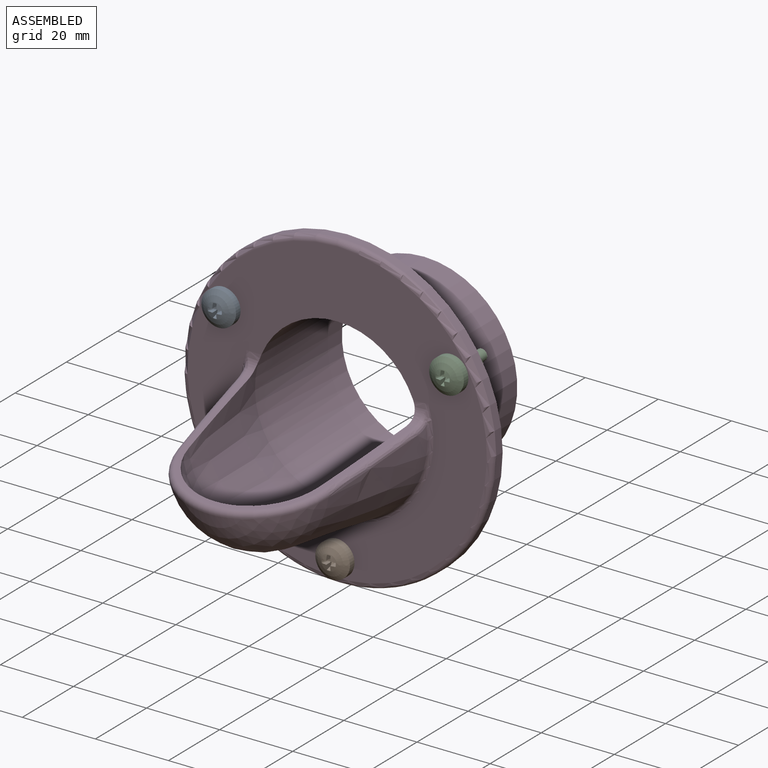
[diagram: assembled view]
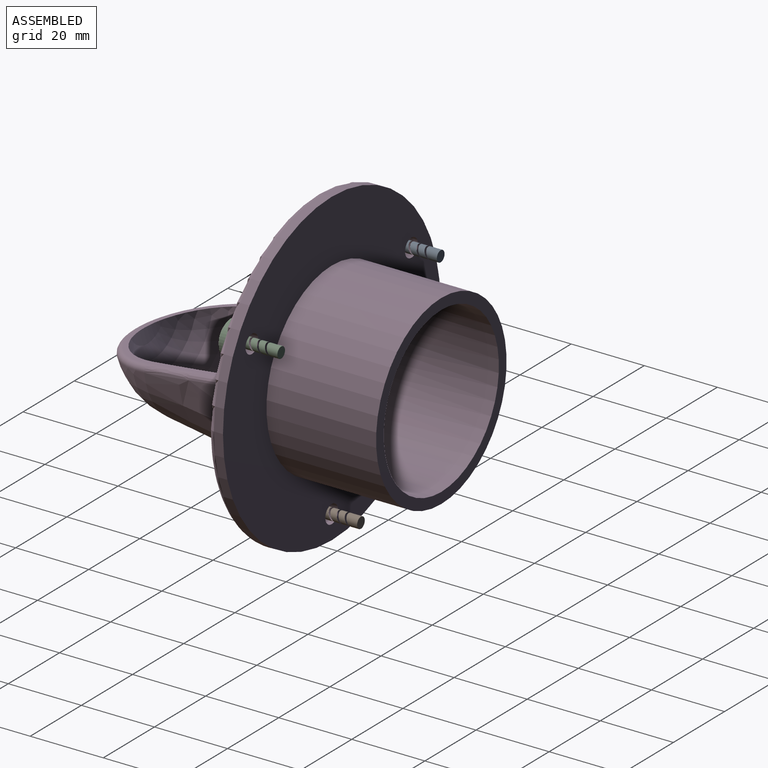
[diagram: assembled view, second angle]
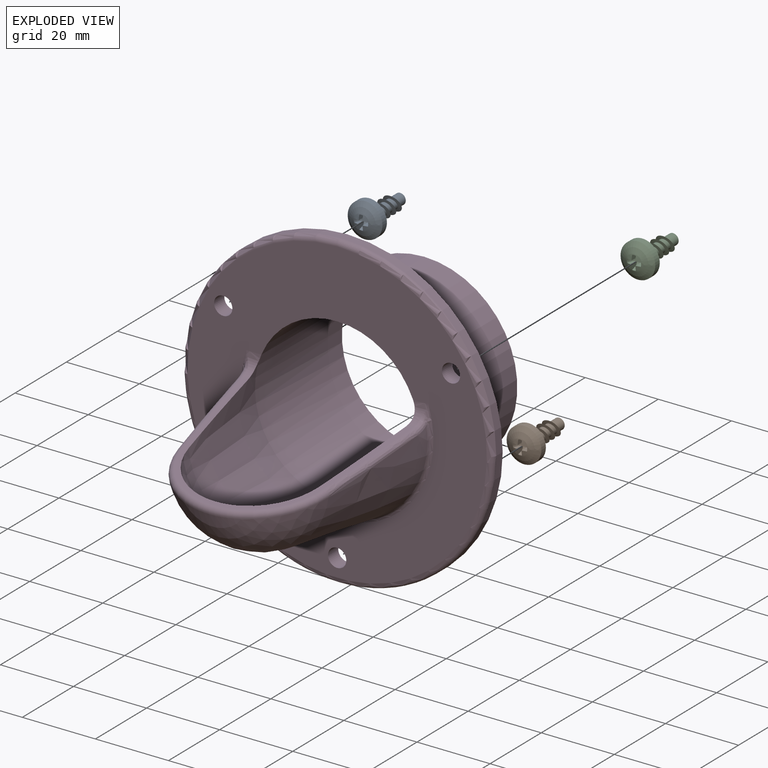
[diagram: exploded view]
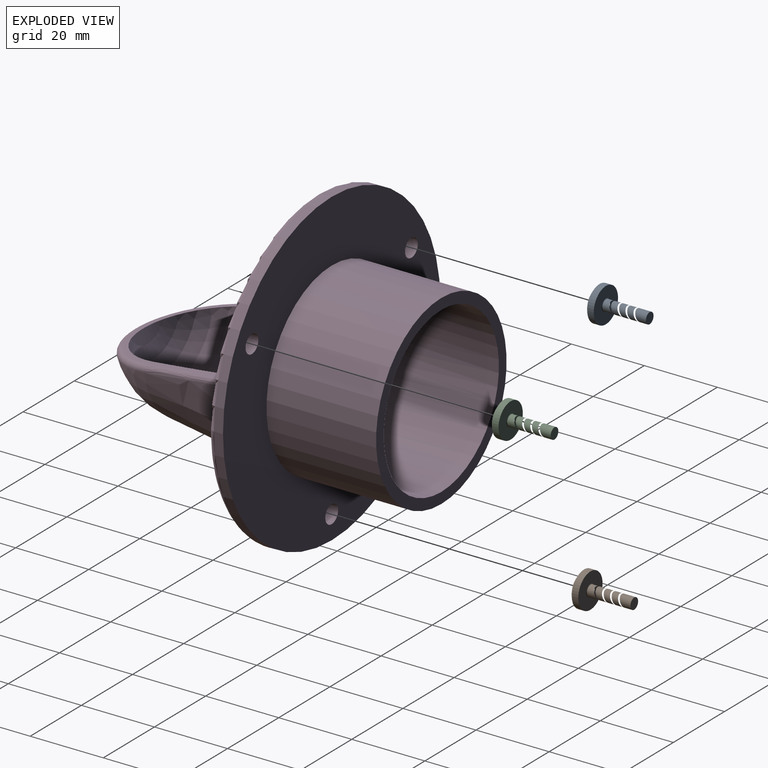
[diagram: exploded view, second angle]
ASSEMBLY  parts=4 mates=3
PART A: 35 faces, bbox 9.8x15.8x9.8 mm
  f0: sphere r=7.24mm, area 72.7mm2, adj f4,f18,f19,f20,f21,f22,f23,f24
  f1: cylinder r=1.5mm len=3mm, axis (0,-1,0), area 19.4mm2, adj f2,f6
  f2: torus R=1.65mm, axis (0,-1,0), area 2.3mm2, adj f1,f3
  f3: plane 9.5x9.5mm, normal (0,1,0), area 62.3mm2, adj f2,f4
  f4: cylinder r=4.75mm len=9.5mm, axis (0,-1,0), area 53mm2, adj f0,f3
  f5: cone r=2.5mm half-angle=73.5deg, axis (0,-0.92,-0.4), area 12.1mm2, adj f6,f7
  f6: cone r=1.5mm half-angle=83deg, axis (0,0.92,0.4), area 12.6mm2, adj f1,f5
  f7: cylinder r=1.5mm len=3.07mm, axis (0,-1,0), area 17.5mm2, adj f5,f9
  f8: cone r=2.5mm half-angle=73.5deg, axis (0,-0.92,-0.4), area 12.1mm2, adj f9,f10
  f9: cone r=1.5mm half-angle=83deg, axis (0,0.92,0.4), area 12.6mm2, adj f7,f8
  f10: cylinder r=1.5mm len=3.07mm, axis (0,-1,0), area 17.5mm2, adj f8,f12
  f11: cone r=2.5mm half-angle=73.5deg, axis (0,-0.92,-0.4), area 12.1mm2, adj f12,f13
  f12: cone r=1.5mm half-angle=83deg, axis (0,0.92,0.4), area 12.6mm2, adj f10,f11
  f13: cylinder r=1.5mm len=3.07mm, axis (0,-1,0), area 17.5mm2, adj f11,f15
  f14: cone r=2.5mm half-angle=73.5deg, axis (0,-0.92,-0.4), area 12.5mm2, adj f15,f17
  f15: cone r=1.5mm half-angle=83deg, axis (0,0.92,0.4), area 12.6mm2, adj f13,f14
  f16: plane 3x3mm, normal (0,1,0), area 7.1mm2, adj f17
  f17: cylinder r=1.5mm len=3.39mm, axis (0,-1,0), area 26mm2, adj f14,f16
  f18: torus R=2.38mm, axis (0,1,0), area 0mm2, adj f0,f23,f28,f31
  f19: torus R=2.38mm, axis (0,1,0), area 0mm2, adj f0,f27,f29,f32
  f20: torus R=2.38mm, axis (0,1,0), area 0mm2, adj f0,f25,f26,f33
  f21: torus R=2.38mm, axis (0,1,0), area 0mm2, adj f0,f22,f24,f34
  f22: plane 2.47x1.67mm, normal (1,0,0), area 2.1mm2, adj f0,f21,f23,f30,f34
  f23: plane 2.47x1.67mm, normal (0,0,1), area 2.1mm2, adj f0,f18,f22,f30,f31
  f24: plane 2.47x1.67mm, normal (-1,0,0), area 2.1mm2, adj f0,f21,f25,f30,f34
  f25: plane 2.47x1.67mm, normal (0,0,1), area 2.1mm2, adj f0,f20,f24,f30,f33
  f26: plane 2.47x1.67mm, normal (0,0,-1), area 2.1mm2, adj f0,f20,f27,f30,f33
  f27: plane 2.47x1.67mm, normal (-1,0,0), area 2.1mm2, adj f0,f19,f26,f30,f32
  f28: plane 2.47x1.67mm, normal (0,0,-1), area 2.1mm2, adj f0,f18,f29,f30,f31
  f29: plane 2.47x1.67mm, normal (1,0,0), area 2.1mm2, adj f0,f19,f28,f30,f32
  f30: cone r=1.5mm half-angle=62deg, axis (0,-1,0), area 6.1mm2, adj f22,f23,f24,f25,f26,f27,f28,f29
  f31: cone r=1.5mm half-angle=15.8deg, axis (0,-1,0), area 1.7mm2, adj f18,f23,f28,f30
  f32: cone r=1.5mm half-angle=15.8deg, axis (0,-1,0), area 1.7mm2, adj f19,f27,f29,f30
  f33: cone r=1.5mm half-angle=15.8deg, axis (0,-1,0), area 1.7mm2, adj f20,f25,f26,f30
  f34: cone r=1.5mm half-angle=15.8deg, axis (0,-1,0), area 1.7mm2, adj f21,f22,f24,f30
PART B: same geometry as A
PART C: same geometry as A
PART D: 25 faces, bbox 133.4x127.2x133.4 mm
  f0: cone r=25.5mm half-angle=8deg, axis (0,1,0), area 2341.9mm2, adj f1,f13,f16,f17,f19,f20
  f1: sphere r=21.09mm, area 0mm2, adj f0,f18
  f2: sphere r=18.12mm, area 4125.2mm2, adj f3,f10
  f3: cone r=22.5mm half-angle=8deg, axis (0,1,0), area 2197.5mm2, adj f2,f8,f10,f11,f12
  f4: cylinder r=25.5mm len=51mm, axis (0,-1,0), area 4806.6mm2, adj f5,f9
  f5: plane 85x85mm, normal (0,1,0), area 3572.8mm2, adj f4,f6,f22,f23,f24
  f6: cylinder r=42.5mm len=85mm, axis (0,-1,0), area 667.6mm2, adj f5,f14
  f7: plane 82x82mm, normal (0,-1,0), area 3265.9mm2, adj f8,f11,f12,f13,f14,f22,f23,f24
  f8: cylinder r=22.5mm len=45mm, axis (0,-1,0), area 4806.6mm2, adj f3,f7,f9
  f9: plane 51x51mm, normal (0,1,0), area 452.4mm2, adj f4,f8
  f10: plane 88.01x86.16mm, normal (0,-0.17,0.98), area 162.3mm2, adj f2,f3,f11,f12,f17,f18,f19
  f11: bspline ~4.92x4.78mm, area 17.4mm2, adj f3,f7,f10,f15,f16
  f12: bspline ~4.92x4.78mm, area 17.4mm2, adj f3,f7,f10,f20,f21
  f13: torus R=26.37mm, axis (0,1,0), area 133.9mm2, adj f0,f7,f15,f21
  f14: torus R=41mm, axis (0,1,0), area 621.1mm2, adj f6,f7
  f15: bspline ~5.33x2.11mm, area 2.8mm2, adj f11,f13,f16
  f16: bspline ~4.81x3.13mm, area 6.6mm2, adj f0,f11,f15,f17
  f17: bspline ~28.84x6.76mm, area 69.2mm2, adj f0,f10,f16,f18
  f18: torus R=19.46mm, axis (0,-0.17,0.98), area 145.6mm2, adj f1,f10,f17,f19
  f19: bspline ~67.85x13.76mm, area 69.2mm2, adj f0,f10,f18,f20
  f20: bspline ~4.81x3.13mm, area 6.6mm2, adj f0,f12,f19,f21
  f21: bspline ~4.96x1.71mm, area 2.8mm2, adj f12,f13,f20
  f22: cylinder r=2.5mm len=5mm, axis (0,-1,0), area 62.8mm2, adj f5,f7
  f23: cylinder r=2.5mm len=5mm, axis (0,-1,0), area 62.8mm2, adj f5,f7
  f24: cylinder r=2.5mm len=5mm, axis (0,-1,0), area 62.8mm2, adj f5,f7
PLACE A t=(-31.18,-385.5,891)mm
PLACE B t=(0,-385.5,837)mm
PLACE C t=(31.18,-385.5,891)mm
PLACE D at identity fixed
MATE fastened B.f1 <-> D.f22  axis (0,1,0) through (0,-385.5,837)mm
MATE fastened A.f2 <-> D.f24  axis (0,1,0) through (-31.18,-385.5,891)mm
MATE fastened C.f1 <-> D.f23  axis (0,1,0) through (31.18,-385.5,891)mm
